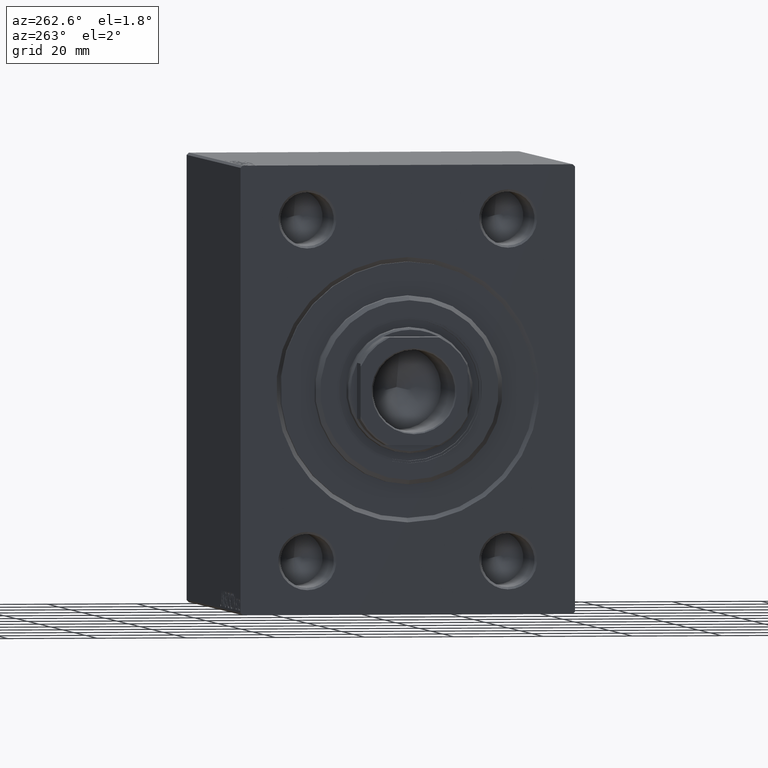
[diagram: clean part render]
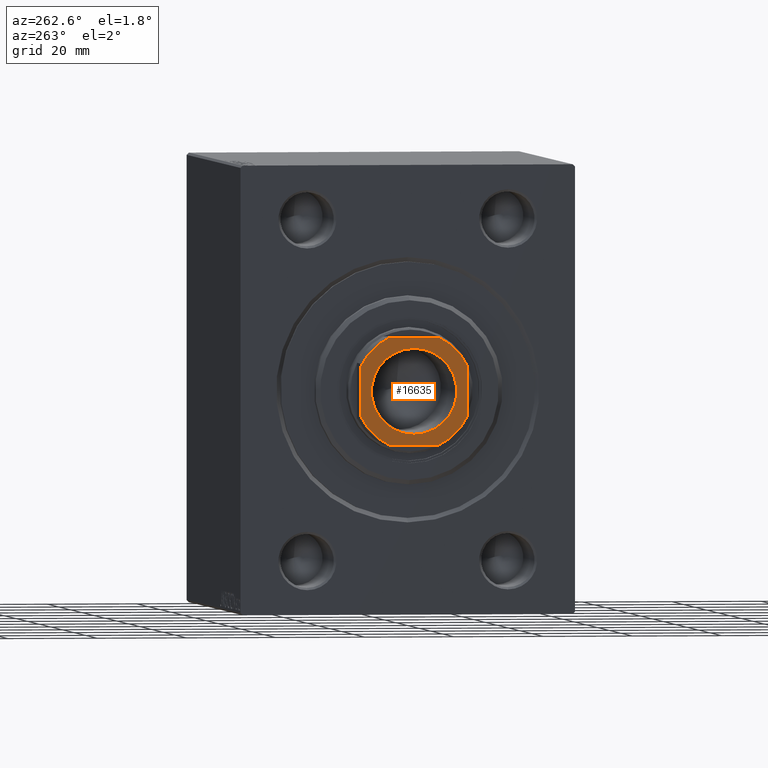
[diagram: same view with one face highlighted and labeled with its STEP entity id]
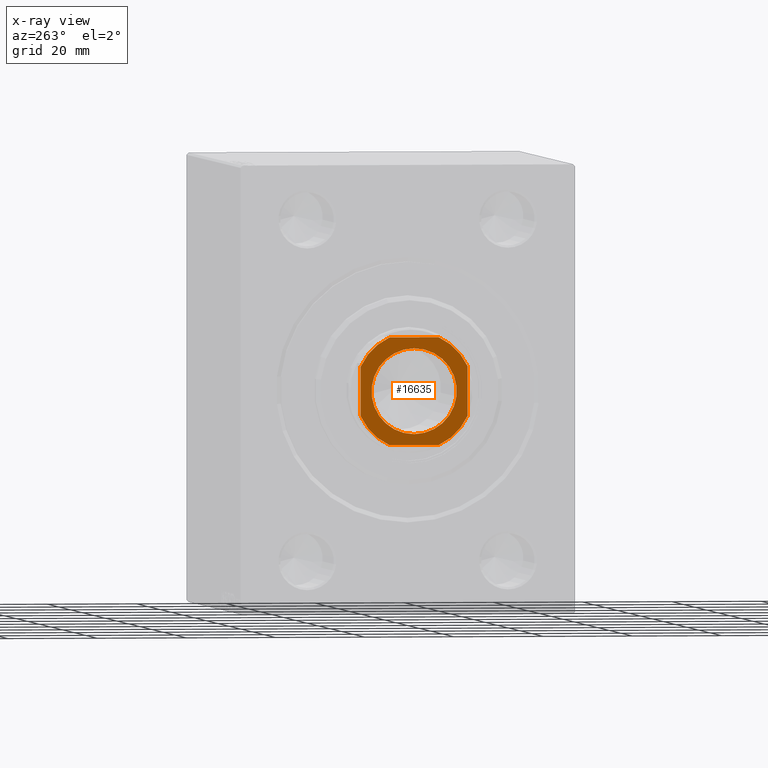
[diagram: x-ray of the same camera — body ghosted, the highlighted face saturated]
A machine part, auxiliary view. The second image highlights one B-rep face of the part: STEP entity #16635.
The next image is the same camera in x-ray: the body ghosted, the highlighted face saturated — about 0% of this face is hidden behind the body in this view.
In plain terms, the highlighted planar face has unit normal (-1, 0, 0).
Its self-contained STEP definition (entity closure, byte-faithful):
#209 = CARTESIAN_POINT ( 'NONE',  ( 5.499090833947051671, 11.99999999999999645, 61.99999999999999289 ) ) ;
#1565 = DIRECTION ( 'NONE',  ( -0.000000000000000000, 0.000000000000000000, 1.000000000000000000 ) ) ;
#1922 = DIRECTION ( 'NONE',  ( 1.000000000000000000, 0.000000000000000000, 0.000000000000000000 ) ) ;
#2587 = CARTESIAN_POINT ( 'NONE',  ( 12.00000000000000000, -5.499090833947048118, 61.99999999999999289 ) ) ;
#3159 = VERTEX_POINT ( 'NONE', #32455 ) ;
#3166 = AXIS2_PLACEMENT_3D ( 'NONE', #13841, #36752, #37200 ) ;
#3395 = ORIENTED_EDGE ( 'NONE', *, *, #27183, .T. ) ;
#4942 = PLANE ( 'NONE',  #40043 ) ;
#5130 = DIRECTION ( 'NONE',  ( 1.000000000000000000, 0.000000000000000000, 0.000000000000000000 ) ) ;
#5295 = VERTEX_POINT ( 'NONE', #15084 ) ;
#5303 = CARTESIAN_POINT ( 'NONE',  ( -11.99999999999999822, -12.00000000000000355, 61.99999999999999289 ) ) ;
#5683 = CIRCLE ( 'NONE', #44391, 13.20000000000002238 ) ;
#6175 = CIRCLE ( 'NONE', #9060, 9.550000000000002487 ) ;
#7208 = EDGE_CURVE ( 'NONE', #3159, #37447, #6175, .T. ) ;
#7464 = CIRCLE ( 'NONE', #44004, 9.550000000000002487 ) ;
#7751 = VERTEX_POINT ( 'NONE', #209 ) ;
#8458 = ORIENTED_EDGE ( 'NONE', *, *, #25627, .T. ) ;
#8461 = LINE ( 'NONE', #22383, #33839 ) ;
#8514 = DIRECTION ( 'NONE',  ( -0.000000000000000000, 0.000000000000000000, 1.000000000000000000 ) ) ;
#9025 = ORIENTED_EDGE ( 'NONE', *, *, #10334, .T. ) ;
#9060 = AXIS2_PLACEMENT_3D ( 'NONE', #34258, #31544, #28175 ) ;
#9074 = CARTESIAN_POINT ( 'NONE',  ( 5.499090833947038348, -12.00000000000000355, 61.99999999999999289 ) ) ;
#9267 = EDGE_CURVE ( 'NONE', #35267, #14371, #22384, .T. ) ;
#9494 = CARTESIAN_POINT ( 'NONE',  ( -12.00000000000000355, 11.99999999999999645, 61.99999999999999289 ) ) ;
#10334 = EDGE_CURVE ( 'NONE', #13339, #28913, #40252, .T. ) ;
#10770 = EDGE_CURVE ( 'NONE', #12353, #7751, #37121, .T. ) ;
#12353 = VERTEX_POINT ( 'NONE', #30526 ) ;
#12425 = CARTESIAN_POINT ( 'NONE',  ( 11.99999999999999645, 11.99999999999999645, 61.99999999999999289 ) ) ;
#13170 = CARTESIAN_POINT ( 'NONE',  ( 0.000000000000000000, 0.000000000000000000, 61.99999999999999289 ) ) ;
#13339 = VERTEX_POINT ( 'NONE', #37218 ) ;
#13841 = CARTESIAN_POINT ( 'NONE',  ( 0.000000000000000000, 0.000000000000000000, 61.99999999999999289 ) ) ;
#14017 = EDGE_LOOP ( 'NONE', ( #8458, #35805, #16753, #42012, #9025, #35517, #16744, #3395 ) ) ;
#14371 = VERTEX_POINT ( 'NONE', #9074 ) ;
#15032 = DIRECTION ( 'NONE',  ( 1.000000000000000000, 0.000000000000000000, 0.000000000000000000 ) ) ;
#15084 = CARTESIAN_POINT ( 'NONE',  ( -5.499090833947067658, 11.99999999999999645, 61.99999999999999289 ) ) ;
#15251 = DIRECTION ( 'NONE',  ( -0.000000000000000000, 0.000000000000000000, 1.000000000000000000 ) ) ;
#15366 = CIRCLE ( 'NONE', #3166, 13.20000000000002238 ) ;
#15739 = CARTESIAN_POINT ( 'NONE',  ( 0.000000000000000000, 0.000000000000000000, 61.99999999999999289 ) ) ;
#16635 = ADVANCED_FACE ( 'NONE', ( #35734, #26273 ), #4942, .T. ) ;
#16700 = CARTESIAN_POINT ( 'NONE',  ( 9.550000000000002487, 0.000000000000000000, 61.99999999999999289 ) ) ;
#16744 = ORIENTED_EDGE ( 'NONE', *, *, #9267, .T. ) ;
#16753 = ORIENTED_EDGE ( 'NONE', *, *, #31505, .T. ) ;
#18610 = CARTESIAN_POINT ( 'NONE',  ( 0.000000000000000000, 0.000000000000000000, 61.99999999999999289 ) ) ;
#19344 = EDGE_CURVE ( 'NONE', #28913, #35267, #5683, .T. ) ;
#21078 = DIRECTION ( 'NONE',  ( -0.000000000000000000, 0.000000000000000000, 1.000000000000000000 ) ) ;
#22383 = CARTESIAN_POINT ( 'NONE',  ( -12.00000000000000355, 11.99999999999999645, 61.99999999999999289 ) ) ;
#22384 = LINE ( 'NONE', #5303, #33466 ) ;
#22635 = CARTESIAN_POINT ( 'NONE',  ( -12.00000000000000000, -5.499090833947057888, 61.99999999999999289 ) ) ;
#23379 = AXIS2_PLACEMENT_3D ( 'NONE', #18610, #15251, #15032 ) ;
#24661 = DIRECTION ( 'NONE',  ( 1.000000000000000000, 0.000000000000000000, 0.000000000000000000 ) ) ;
#25525 = DIRECTION ( 'NONE',  ( -1.000000000000000000, -0.000000000000000000, -0.000000000000000000 ) ) ;
#25627 = EDGE_CURVE ( 'NONE', #39564, #12353, #32863, .T. ) ;
#26273 = FACE_OUTER_BOUND ( 'NONE', #14017, .T. ) ;
#26336 = VECTOR ( 'NONE', #34411, 1000.000000000000000 ) ;
#26463 = ORIENTED_EDGE ( 'NONE', *, *, #7208, .T. ) ;
#27183 = EDGE_CURVE ( 'NONE', #14371, #39564, #34449, .T. ) ;
#28115 = EDGE_LOOP ( 'NONE', ( #28170, #26463 ) ) ;
#28170 = ORIENTED_EDGE ( 'NONE', *, *, #37487, .T. ) ;
#28175 = DIRECTION ( 'NONE',  ( 1.000000000000000000, 0.000000000000000000, 0.000000000000000000 ) ) ;
#28539 = CARTESIAN_POINT ( 'NONE',  ( -5.499090833947050783, -12.00000000000000355, 61.99999999999999289 ) ) ;
#28913 = VERTEX_POINT ( 'NONE', #22635 ) ;
#29949 = DIRECTION ( 'NONE',  ( -2.168404344971008868E-16, 1.000000000000000000, -0.000000000000000000 ) ) ;
#30526 = CARTESIAN_POINT ( 'NONE',  ( 11.99999999999999645, 5.499090833947050783, 61.99999999999999289 ) ) ;
#31505 = EDGE_CURVE ( 'NONE', #7751, #5295, #8461, .T. ) ;
#31544 = DIRECTION ( 'NONE',  ( 0.000000000000000000, -0.000000000000000000, -1.000000000000000000 ) ) ;
#32455 = CARTESIAN_POINT ( 'NONE',  ( -9.550000000000002487, 1.169537693185722558E-15, 61.99999999999999289 ) ) ;
#32863 = LINE ( 'NONE', #12425, #37395 ) ;
#33466 = VECTOR ( 'NONE', #1922, 1000.000000000000000 ) ;
#33839 = VECTOR ( 'NONE', #25525, 1000.000000000000000 ) ;
#34258 = CARTESIAN_POINT ( 'NONE',  ( 0.000000000000000000, 0.000000000000000000, 61.99999999999999289 ) ) ;
#34411 = DIRECTION ( 'NONE',  ( 2.168404344971008868E-16, -1.000000000000000000, 0.000000000000000000 ) ) ;
#34418 = DIRECTION ( 'NONE',  ( 0.000000000000000000, -0.000000000000000000, -1.000000000000000000 ) ) ;
#34449 = CIRCLE ( 'NONE', #42335, 13.20000000000001528 ) ;
#34780 = CARTESIAN_POINT ( 'NONE',  ( 0.000000000000000000, 0.000000000000000000, 61.99999999999999289 ) ) ;
#35267 = VERTEX_POINT ( 'NONE', #28539 ) ;
#35517 = ORIENTED_EDGE ( 'NONE', *, *, #19344, .T. ) ;
#35734 = FACE_BOUND ( 'NONE', #28115, .T. ) ;
#35805 = ORIENTED_EDGE ( 'NONE', *, *, #10770, .T. ) ;
#36610 = DIRECTION ( 'NONE',  ( 1.000000000000000000, 0.000000000000000000, 0.000000000000000000 ) ) ;
#36752 = DIRECTION ( 'NONE',  ( -0.000000000000000000, 0.000000000000000000, 1.000000000000000000 ) ) ;
#37121 = CIRCLE ( 'NONE', #23379, 13.20000000000001528 ) ;
#37200 = DIRECTION ( 'NONE',  ( 1.000000000000000000, 0.000000000000000000, 0.000000000000000000 ) ) ;
#37218 = CARTESIAN_POINT ( 'NONE',  ( -12.00000000000000178, 5.499090833947054335, 61.99999999999999289 ) ) ;
#37395 = VECTOR ( 'NONE', #29949, 1000.000000000000000 ) ;
#37447 = VERTEX_POINT ( 'NONE', #16700 ) ;
#37487 = EDGE_CURVE ( 'NONE', #37447, #3159, #7464, .T. ) ;
#37783 = DIRECTION ( 'NONE',  ( 1.000000000000000000, 0.000000000000000000, 0.000000000000000000 ) ) ;
#39564 = VERTEX_POINT ( 'NONE', #2587 ) ;
#40043 = AXIS2_PLACEMENT_3D ( 'NONE', #15739, #1565, #36610 ) ;
#40252 = LINE ( 'NONE', #9494, #26336 ) ;
#41134 = CARTESIAN_POINT ( 'NONE',  ( 0.000000000000000000, 0.000000000000000000, 61.99999999999999289 ) ) ;
#42012 = ORIENTED_EDGE ( 'NONE', *, *, #42624, .T. ) ;
#42335 = AXIS2_PLACEMENT_3D ( 'NONE', #13170, #8514, #5130 ) ;
#42624 = EDGE_CURVE ( 'NONE', #5295, #13339, #15366, .T. ) ;
#44004 = AXIS2_PLACEMENT_3D ( 'NONE', #41134, #34418, #37783 ) ;
#44391 = AXIS2_PLACEMENT_3D ( 'NONE', #34780, #21078, #24661 ) ;